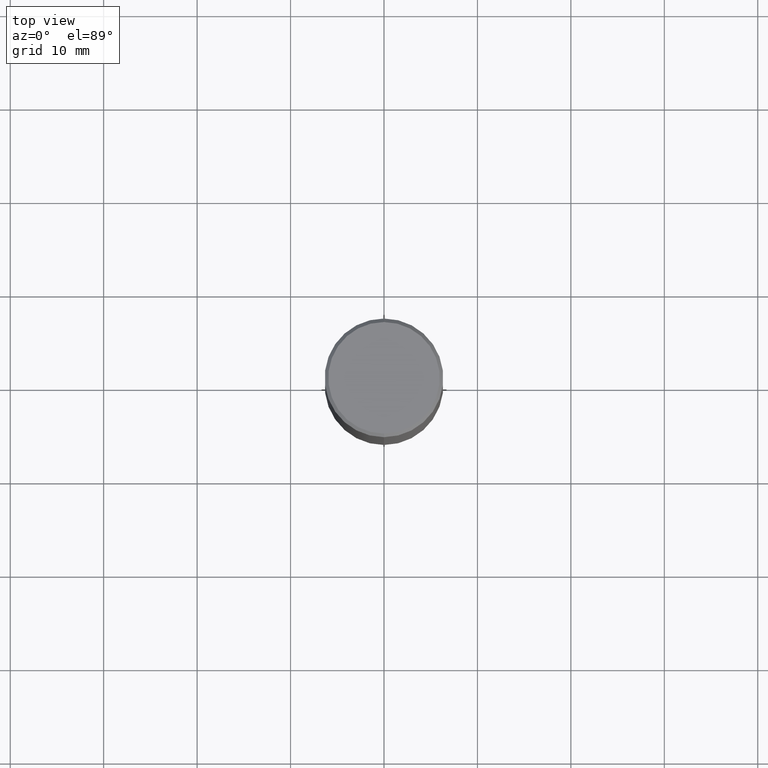
[diagram: clean part render]
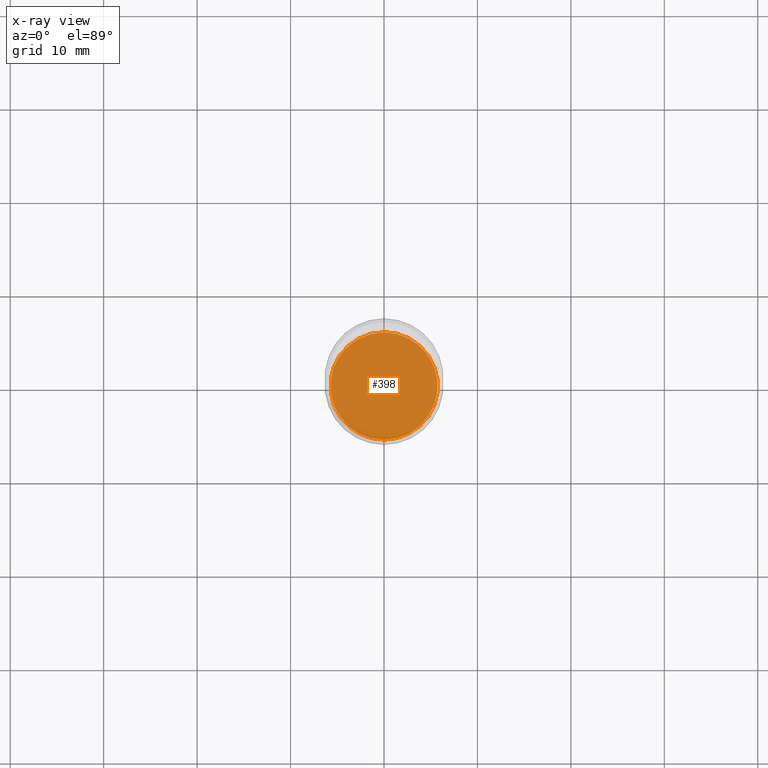
[diagram: x-ray — body ghosted, one internal face saturated and labeled with its STEP entity id]
A machine part, top view, then the same camera in x-ray: the body is ghosted and one INTERNAL B-rep face — a face not visible from any outside direction — is saturated and labeled: STEP entity #398.
In plain terms, the highlighted planar face has unit normal (-0, 0, 1).
Its self-contained STEP definition (entity closure, byte-faithful):
#5 = VERTEX_POINT ( 'NONE', #276 ) ;
#55 = VERTEX_POINT ( 'NONE', #446 ) ;
#71 = DIRECTION ( 'NONE',  ( -6.982962677686265133E-15, -1.000000000000000000, 3.625544782567037861E-15 ) ) ;
#77 = DIRECTION ( 'NONE',  ( -2.445744433736275224E-29, 3.491086624502169122E-15, 1.000000000000000000 ) ) ;
#90 = DIRECTION ( 'NONE',  ( -6.982962677686265922E-15, -1.000000000000000000, 3.491086624502168728E-15 ) ) ;
#118 = DIRECTION ( 'NONE',  ( -2.445744433736275224E-29, 3.491086624502168728E-15, 1.000000000000000000 ) ) ;
#189 = CARTESIAN_POINT ( 'NONE',  ( 4.891488867472551570E-29, -6.982173249004339033E-15, -2.000000000000000444 ) ) ;
#221 = DIRECTION ( 'NONE',  ( -6.982962677686265133E-15, -1.000000000000000000, 3.625544782567037861E-15 ) ) ;
#227 = AXIS2_PLACEMENT_3D ( 'NONE', #428, #77, #71 ) ;
#233 = EDGE_CURVE ( 'NONE', #55, #5, #485, .T. ) ;
#258 = AXIS2_PLACEMENT_3D ( 'NONE', #189, #345, #221 ) ;
#260 = EDGE_LOOP ( 'NONE', ( #311, #373 ) ) ;
#276 = CARTESIAN_POINT ( 'NONE',  ( 1.607958211025155638E-15, 0.2260499999999930620, -2.000000000000000888 ) ) ;
#311 = ORIENTED_EDGE ( 'NONE', *, *, #233, .F. ) ;
#327 = EDGE_CURVE ( 'NONE', #5, #55, #388, .T. ) ;
#345 = DIRECTION ( 'NONE',  ( -2.445744433736275224E-29, 3.491086624502169122E-15, 1.000000000000000000 ) ) ;
#373 = ORIENTED_EDGE ( 'NONE', *, *, #327, .F. ) ;
#388 = CIRCLE ( 'NONE', #227, 0.2260500000000000287 ) ;
#397 = AXIS2_PLACEMENT_3D ( 'NONE', #459, #118, #90 ) ;
#398 = ADVANCED_FACE ( 'NONE', ( #506 ), #403, .F. ) ;
#403 = PLANE ( 'NONE',  #397 ) ;
#428 = CARTESIAN_POINT ( 'NONE',  ( 4.891488867472551570E-29, -6.982173249004339033E-15, -2.000000000000000444 ) ) ;
#446 = CARTESIAN_POINT ( 'NONE',  ( -1.578498713290931613E-15, -0.2260500000000069953, -1.999999999999999334 ) ) ;
#459 = CARTESIAN_POINT ( 'NONE',  ( 4.891488867472551570E-29, -6.982173249004339033E-15, -2.000000000000000444 ) ) ;
#485 = CIRCLE ( 'NONE', #258, 0.2260500000000000287 ) ;
#506 = FACE_OUTER_BOUND ( 'NONE', #260, .T. ) ;